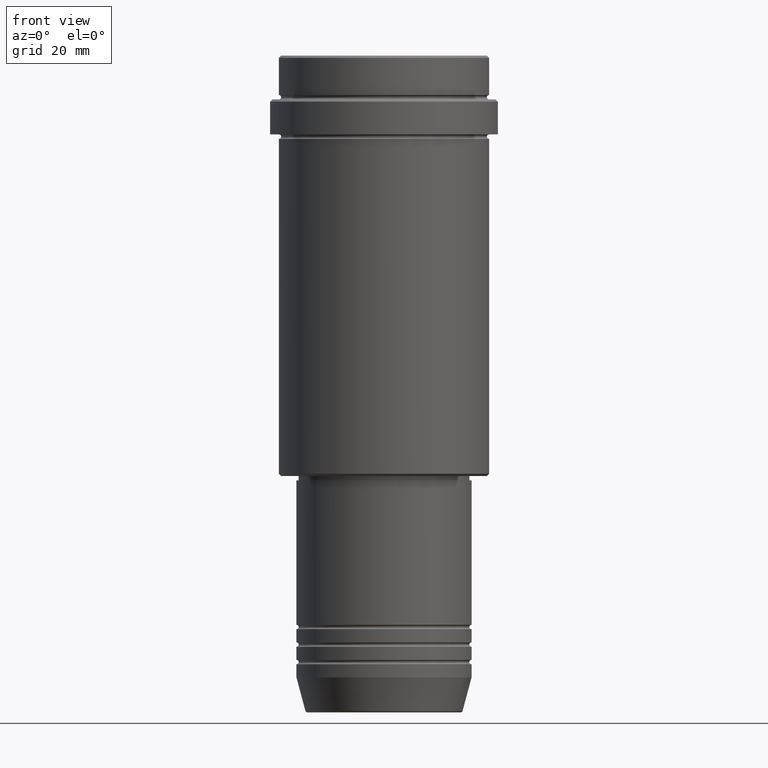
[diagram: clean part render]
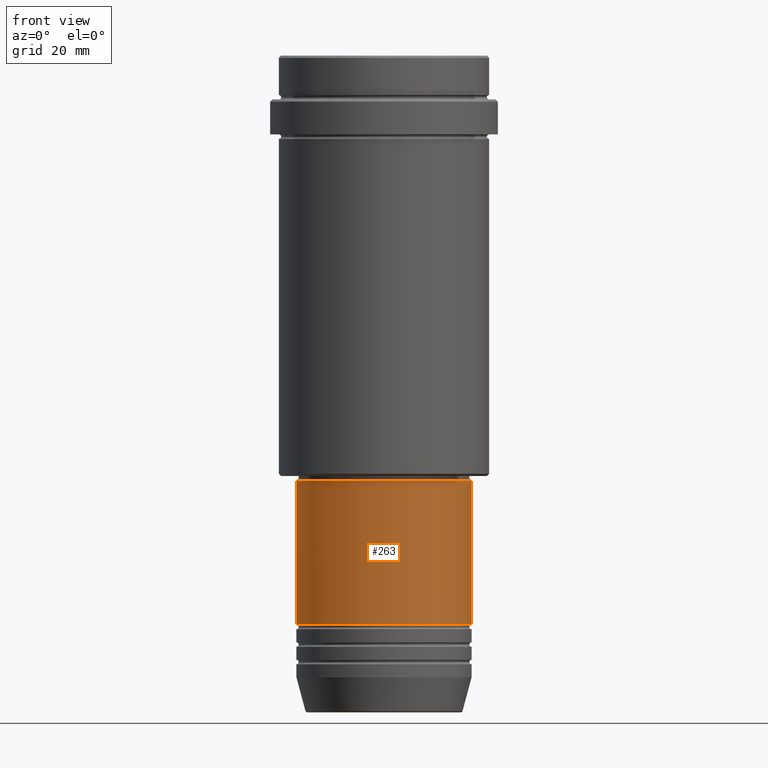
[diagram: same view with one face highlighted and labeled with its STEP entity id]
A machine part, front view. The second image highlights one B-rep face of the part: STEP entity #263.
In plain terms, the highlighted cylindrical surface (partial cylindrical patch) has radius 20 mm, axis along (-0, -0, 1).
Its self-contained STEP definition (entity closure, byte-faithful):
#23 = EDGE_CURVE ( 'NONE', #1334, #815, #85, .T. ) ;
#64 = VECTOR ( 'NONE', #576, 1000.000000000000000 ) ;
#85 = CIRCLE ( 'NONE', #925, 20.00000000000000000 ) ;
#90 = DIRECTION ( 'NONE',  ( -0.000000000000000000, -0.000000000000000000, 1.000000000000000000 ) ) ;
#150 = LINE ( 'NONE', #361, #64 ) ;
#168 = ORIENTED_EDGE ( 'NONE', *, *, #23, .T. ) ;
#189 = CARTESIAN_POINT ( 'NONE',  ( 0.000000000000000000, 0.000000000000000000, 0.000000000000000000 ) ) ;
#220 = EDGE_CURVE ( 'NONE', #960, #625, #674, .T. ) ;
#259 = CARTESIAN_POINT ( 'NONE',  ( 20.00000000000000000, 0.000000000000000000, -129.9999999999998863 ) ) ;
#263 = ADVANCED_FACE ( 'NONE', ( #755 ), #1166, .T. ) ;
#274 = DIRECTION ( 'NONE',  ( -0.000000000000000000, -0.000000000000000000, 1.000000000000000000 ) ) ;
#361 = CARTESIAN_POINT ( 'NONE',  ( 20.00000000000000000, 0.000000000000000000, 0.000000000000000000 ) ) ;
#388 = ORIENTED_EDGE ( 'NONE', *, *, #1106, .F. ) ;
#394 = LINE ( 'NONE', #926, #850 ) ;
#524 = DIRECTION ( 'NONE',  ( 1.000000000000000000, 0.000000000000000000, 0.000000000000000000 ) ) ;
#576 = DIRECTION ( 'NONE',  ( -0.000000000000000000, -0.000000000000000000, 1.000000000000000000 ) ) ;
#612 = CARTESIAN_POINT ( 'NONE',  ( 0.000000000000000000, 0.000000000000000000, -129.9999999999998863 ) ) ;
#625 = VERTEX_POINT ( 'NONE', #661 ) ;
#661 = CARTESIAN_POINT ( 'NONE',  ( 20.00000000000000000, 0.000000000000000000, -96.99999999999998579 ) ) ;
#674 = CIRCLE ( 'NONE', #943, 20.00000000000000000 ) ;
#743 = DIRECTION ( 'NONE',  ( -0.000000000000000000, -0.000000000000000000, 1.000000000000000000 ) ) ;
#755 = FACE_OUTER_BOUND ( 'NONE', #1365, .T. ) ;
#776 = CARTESIAN_POINT ( 'NONE',  ( -20.00000000000000000, 2.449293598294706513E-15, -129.9999999999998863 ) ) ;
#815 = VERTEX_POINT ( 'NONE', #259 ) ;
#850 = VECTOR ( 'NONE', #1163, 1000.000000000000000 ) ;
#925 = AXIS2_PLACEMENT_3D ( 'NONE', #612, #274, #1035 ) ;
#926 = CARTESIAN_POINT ( 'NONE',  ( -20.00000000000000000, 2.449293598294706513E-15, 0.000000000000000000 ) ) ;
#943 = AXIS2_PLACEMENT_3D ( 'NONE', #1385, #90, #1288 ) ;
#960 = VERTEX_POINT ( 'NONE', #1103 ) ;
#1035 = DIRECTION ( 'NONE',  ( 1.000000000000000000, 0.000000000000000000, 0.000000000000000000 ) ) ;
#1040 = AXIS2_PLACEMENT_3D ( 'NONE', #189, #743, #524 ) ;
#1103 = CARTESIAN_POINT ( 'NONE',  ( -20.00000000000000000, 2.449293598294706513E-15, -96.99999999999998579 ) ) ;
#1106 = EDGE_CURVE ( 'NONE', #1334, #960, #394, .T. ) ;
#1124 = ORIENTED_EDGE ( 'NONE', *, *, #220, .F. ) ;
#1163 = DIRECTION ( 'NONE',  ( -0.000000000000000000, -0.000000000000000000, 1.000000000000000000 ) ) ;
#1166 = CYLINDRICAL_SURFACE ( 'NONE', #1040, 20.00000000000000000 ) ;
#1288 = DIRECTION ( 'NONE',  ( 1.000000000000000000, 0.000000000000000000, 0.000000000000000000 ) ) ;
#1334 = VERTEX_POINT ( 'NONE', #776 ) ;
#1365 = EDGE_LOOP ( 'NONE', ( #388, #168, #1406, #1124 ) ) ;
#1378 = EDGE_CURVE ( 'NONE', #815, #625, #150, .T. ) ;
#1385 = CARTESIAN_POINT ( 'NONE',  ( 0.000000000000000000, 0.000000000000000000, -96.99999999999998579 ) ) ;
#1406 = ORIENTED_EDGE ( 'NONE', *, *, #1378, .T. ) ;